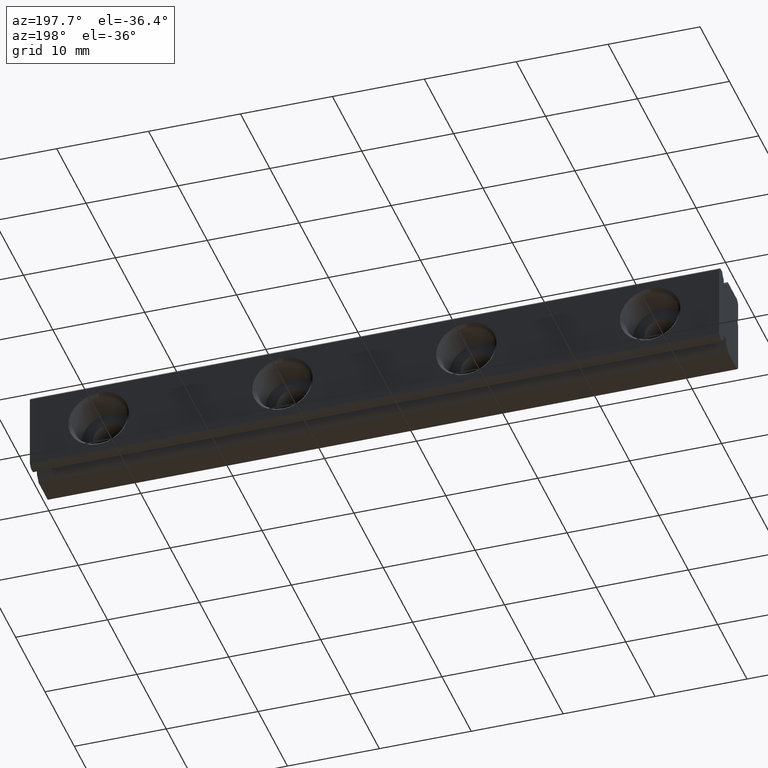
[diagram: clean part render]
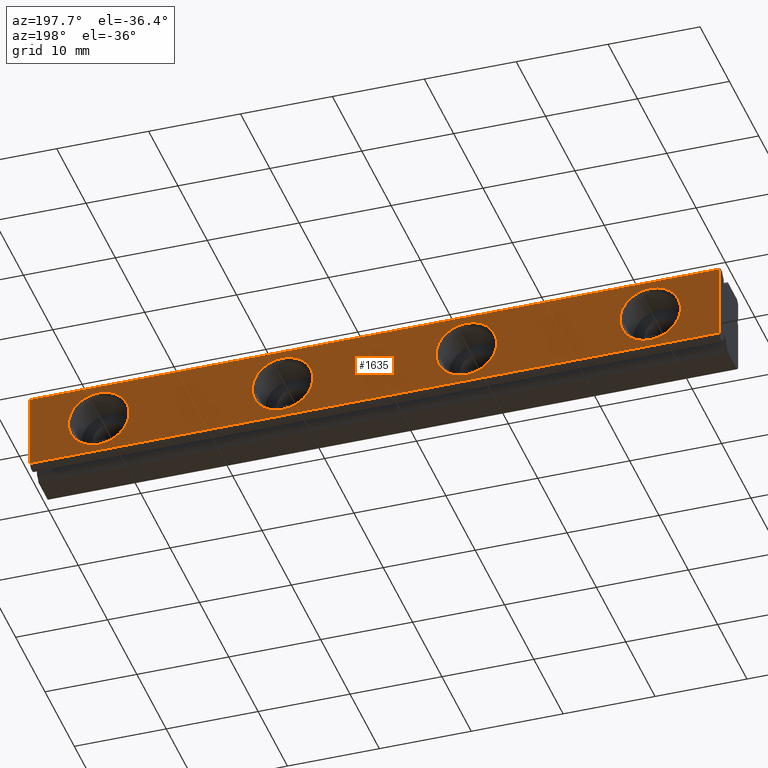
[diagram: same view with one face highlighted and labeled with its STEP entity id]
A machine part, auxiliary view. The second image highlights one B-rep face of the part: STEP entity #1635.
In plain terms, the highlighted planar face has unit normal (0, 1, 0).
Its self-contained STEP definition (entity closure, byte-faithful):
#41 = VERTEX_POINT ( 'NONE', #209 ) ;
#43 = EDGE_CURVE ( 'NONE', #47, #41, #202, .T. ) ;
#47 = VERTEX_POINT ( 'NONE', #193 ) ;
#50 = VERTEX_POINT ( 'NONE', #192 ) ;
#52 = EDGE_CURVE ( 'NONE', #127, #50, #254, .T. ) ;
#64 = EDGE_CURVE ( 'NONE', #77, #73, #223, .T. ) ;
#73 = VERTEX_POINT ( 'NONE', #265 ) ;
#77 = VERTEX_POINT ( 'NONE', #260 ) ;
#127 = VERTEX_POINT ( 'NONE', #401 ) ;
#192 = CARTESIAN_POINT ( 'NONE',  ( -67.50000000000000000, 6.500000000000000900, 3.299999999999996300 ) ) ;
#193 = CARTESIAN_POINT ( 'NONE',  ( -47.50000000000000000, 6.499999999999999100, -3.299999999999998500 ) ) ;
#199 = DIRECTION ( 'NONE',  ( 0.0000000000000000000, 2.628368902995164500E-016, 1.000000000000000000 ) ) ;
#200 = DIRECTION ( 'NONE',  ( 0.0000000000000000000, 1.000000000000000000, -2.668805347656626200E-016 ) ) ;
#201 = AXIS2_PLACEMENT_3D ( 'NONE', #208, #200, #199 ) ;
#202 = CIRCLE ( 'NONE', #201, 3.299999999999997200 ) ;
#208 = CARTESIAN_POINT ( 'NONE',  ( -47.50000000000000000, 6.500000000000000000, -1.372970165742619300E-015 ) ) ;
#209 = CARTESIAN_POINT ( 'NONE',  ( -47.50000000000000000, 6.500000000000000900, 3.299999999999996300 ) ) ;
#223 = CIRCLE ( 'NONE', #280, 3.300000000000000700 ) ;
#250 = DIRECTION ( 'NONE',  ( 0.0000000000000000000, 2.628368902995164500E-016, 1.000000000000000000 ) ) ;
#251 = DIRECTION ( 'NONE',  ( 0.0000000000000000000, 1.000000000000000000, -2.668805347656626200E-016 ) ) ;
#252 = CARTESIAN_POINT ( 'NONE',  ( -67.50000000000000000, 6.500000000000000000, -1.372970165742619300E-015 ) ) ;
#253 = AXIS2_PLACEMENT_3D ( 'NONE', #252, #251, #250 ) ;
#254 = CIRCLE ( 'NONE', #253, 3.299999999999997200 ) ;
#260 = CARTESIAN_POINT ( 'NONE',  ( -27.50000000000000000, 6.499999999999999100, -3.300000000000002000 ) ) ;
#265 = CARTESIAN_POINT ( 'NONE',  ( -27.50000000000000000, 6.500000000000000900, 3.299999999999999400 ) ) ;
#277 = DIRECTION ( 'NONE',  ( 0.0000000000000000000, 2.628368902995161500E-016, 1.000000000000000000 ) ) ;
#278 = DIRECTION ( 'NONE',  ( 0.0000000000000000000, 1.000000000000000000, -2.668805347656626200E-016 ) ) ;
#279 = CARTESIAN_POINT ( 'NONE',  ( -27.50000000000000000, 6.500000000000000000, -1.372970165742619300E-015 ) ) ;
#280 = AXIS2_PLACEMENT_3D ( 'NONE', #279, #278, #277 ) ;
#401 = CARTESIAN_POINT ( 'NONE',  ( -67.50000000000000000, 6.499999999999999100, -3.299999999999998500 ) ) ;
#508 = CARTESIAN_POINT ( 'NONE',  ( -7.500000000000000000, 6.500000000000000000, -1.372970165742619300E-015 ) ) ;
#515 = CARTESIAN_POINT ( 'NONE',  ( -7.500000000000000000, 6.500000000000000900, 3.299999999999998500 ) ) ;
#559 = CARTESIAN_POINT ( 'NONE',  ( -7.500000000000000000, 6.499999999999999100, -3.300000000000001200 ) ) ;
#564 = DIRECTION ( 'NONE',  ( 0.0000000000000000000, 2.628368902995162500E-016, 1.000000000000000000 ) ) ;
#565 = DIRECTION ( 'NONE',  ( 0.0000000000000000000, 1.000000000000000000, -2.668805347656626200E-016 ) ) ;
#566 = AXIS2_PLACEMENT_3D ( 'NONE', #508, #565, #564 ) ;
#567 = CIRCLE ( 'NONE', #566, 3.299999999999999800 ) ;
#812 = AXIS2_PLACEMENT_3D ( 'NONE', #879, #878, #877 ) ;
#813 = PLANE ( 'NONE',  #812 ) ;
#814 = FACE_OUTER_BOUND ( 'NONE', #1671, .T. ) ;
#815 = FACE_BOUND ( 'NONE', #1667, .T. ) ;
#816 = FACE_BOUND ( 'NONE', #1668, .T. ) ;
#817 = FACE_BOUND ( 'NONE', #1676, .T. ) ;
#818 = FACE_BOUND ( 'NONE', #1637, .T. ) ;
#853 = CARTESIAN_POINT ( 'NONE',  ( -75.00000000000000000, 6.499999999999998200, 4.100000000000001400 ) ) ;
#867 = DIRECTION ( 'NONE',  ( 0.0000000000000000000, 2.628368902995164500E-016, 1.000000000000000000 ) ) ;
#868 = DIRECTION ( 'NONE',  ( 0.0000000000000000000, 1.000000000000000000, -2.668805347656626200E-016 ) ) ;
#869 = CARTESIAN_POINT ( 'NONE',  ( -67.50000000000000000, 6.500000000000000000, -1.372970165742619300E-015 ) ) ;
#870 = AXIS2_PLACEMENT_3D ( 'NONE', #869, #868, #867 ) ;
#871 = CIRCLE ( 'NONE', #870, 3.299999999999997200 ) ;
#872 = DIRECTION ( 'NONE',  ( 1.000000000000000000, 0.0000000000000000000, 0.0000000000000000000 ) ) ;
#873 = VECTOR ( 'NONE', #872, 1000.000000000000000 ) ;
#874 = CARTESIAN_POINT ( 'NONE',  ( -75.00000000000000000, 6.499999999999998200, 4.100000000000001400 ) ) ;
#875 = LINE ( 'NONE', #874, #873 ) ;
#876 = CARTESIAN_POINT ( 'NONE',  ( 0.0000000000000000000, 6.499999999999998200, 4.100000000000001400 ) ) ;
#877 = DIRECTION ( 'NONE',  ( 0.0000000000000000000, -4.231032868236114900E-016, 1.000000000000000000 ) ) ;
#878 = DIRECTION ( 'NONE',  ( 0.0000000000000000000, 1.000000000000000000, 4.231032868236114900E-016 ) ) ;
#879 = CARTESIAN_POINT ( 'NONE',  ( -75.00000000000000000, 6.500000000000000000, 1.591988259969090200E-015 ) ) ;
#884 = CARTESIAN_POINT ( 'NONE',  ( -7.500000000000000000, 6.500000000000000000, -1.372970165742619300E-015 ) ) ;
#887 = DIRECTION ( 'NONE',  ( 0.0000000000000000000, -4.231032868236115400E-016, 1.000000000000000000 ) ) ;
#888 = VECTOR ( 'NONE', #887, 1000.000000000000000 ) ;
#889 = CARTESIAN_POINT ( 'NONE',  ( -75.00000000000000000, 6.500000000000000000, 1.591988259969090200E-015 ) ) ;
#890 = LINE ( 'NONE', #889, #888 ) ;
#891 = CARTESIAN_POINT ( 'NONE',  ( -75.00000000000000000, 6.500000000000000000, -4.099999999999997900 ) ) ;
#892 = DIRECTION ( 'NONE',  ( 0.0000000000000000000, 2.628368902995164500E-016, 1.000000000000000000 ) ) ;
#893 = DIRECTION ( 'NONE',  ( 0.0000000000000000000, 1.000000000000000000, -2.668805347656626200E-016 ) ) ;
#894 = CARTESIAN_POINT ( 'NONE',  ( -47.50000000000000000, 6.500000000000000000, -1.372970165742619300E-015 ) ) ;
#895 = AXIS2_PLACEMENT_3D ( 'NONE', #894, #893, #892 ) ;
#896 = CIRCLE ( 'NONE', #895, 3.299999999999997200 ) ;
#897 = DIRECTION ( 'NONE',  ( 0.0000000000000000000, 2.628368902995161500E-016, 1.000000000000000000 ) ) ;
#898 = DIRECTION ( 'NONE',  ( 0.0000000000000000000, 1.000000000000000000, -2.668805347656626200E-016 ) ) ;
#899 = CARTESIAN_POINT ( 'NONE',  ( -27.50000000000000000, 6.500000000000000000, -1.372970165742619300E-015 ) ) ;
#900 = AXIS2_PLACEMENT_3D ( 'NONE', #899, #898, #897 ) ;
#901 = CIRCLE ( 'NONE', #900, 3.300000000000000700 ) ;
#902 = DIRECTION ( 'NONE',  ( 1.000000000000000000, 0.0000000000000000000, 0.0000000000000000000 ) ) ;
#903 = VECTOR ( 'NONE', #902, 1000.000000000000000 ) ;
#904 = CARTESIAN_POINT ( 'NONE',  ( -75.00000000000000000, 6.500000000000000000, -4.099999999999997900 ) ) ;
#905 = LINE ( 'NONE', #904, #903 ) ;
#906 = CARTESIAN_POINT ( 'NONE',  ( 0.0000000000000000000, 6.500000000000000000, -4.099999999999997900 ) ) ;
#907 = DIRECTION ( 'NONE',  ( 0.0000000000000000000, -4.231032868236115400E-016, 1.000000000000000000 ) ) ;
#908 = VECTOR ( 'NONE', #907, 1000.000000000000000 ) ;
#909 = CARTESIAN_POINT ( 'NONE',  ( 0.0000000000000000000, 6.500000000000000000, 1.591988259969090200E-015 ) ) ;
#910 = LINE ( 'NONE', #909, #908 ) ;
#938 = DIRECTION ( 'NONE',  ( 0.0000000000000000000, 2.628368902995162500E-016, 1.000000000000000000 ) ) ;
#939 = DIRECTION ( 'NONE',  ( 0.0000000000000000000, 1.000000000000000000, -2.668805347656626200E-016 ) ) ;
#940 = AXIS2_PLACEMENT_3D ( 'NONE', #884, #939, #938 ) ;
#941 = CIRCLE ( 'NONE', #940, 3.299999999999999800 ) ;
#1474 = VERTEX_POINT ( 'NONE', #515 ) ;
#1477 = EDGE_CURVE ( 'NONE', #1482, #1474, #567, .T. ) ;
#1482 = VERTEX_POINT ( 'NONE', #559 ) ;
#1635 = ADVANCED_FACE ( 'NONE', ( #818, #817, #816, #815, #814 ), #813, .T. ) ;
#1636 = VERTEX_POINT ( 'NONE', #876 ) ;
#1637 = EDGE_LOOP ( 'NONE', ( #1640, #1674 ) ) ;
#1640 = ORIENTED_EDGE ( 'NONE', *, *, #1644, .F. ) ;
#1642 = EDGE_CURVE ( 'NONE', #1650, #1636, #875, .T. ) ;
#1644 = EDGE_CURVE ( 'NONE', #50, #127, #871, .T. ) ;
#1650 = VERTEX_POINT ( 'NONE', #853 ) ;
#1652 = EDGE_CURVE ( 'NONE', #1654, #1636, #910, .T. ) ;
#1653 = ORIENTED_EDGE ( 'NONE', *, *, #43, .F. ) ;
#1654 = VERTEX_POINT ( 'NONE', #906 ) ;
#1655 = ORIENTED_EDGE ( 'NONE', *, *, #1659, .F. ) ;
#1656 = ORIENTED_EDGE ( 'NONE', *, *, #1657, .F. ) ;
#1657 = EDGE_CURVE ( 'NONE', #1661, #1654, #905, .T. ) ;
#1658 = ORIENTED_EDGE ( 'NONE', *, *, #1663, .T. ) ;
#1659 = EDGE_CURVE ( 'NONE', #73, #77, #901, .T. ) ;
#1660 = EDGE_CURVE ( 'NONE', #41, #47, #896, .T. ) ;
#1661 = VERTEX_POINT ( 'NONE', #891 ) ;
#1662 = ORIENTED_EDGE ( 'NONE', *, *, #64, .F. ) ;
#1663 = EDGE_CURVE ( 'NONE', #1661, #1650, #890, .T. ) ;
#1664 = ORIENTED_EDGE ( 'NONE', *, *, #1642, .T. ) ;
#1666 = ORIENTED_EDGE ( 'NONE', *, *, #1477, .F. ) ;
#1667 = EDGE_LOOP ( 'NONE', ( #1670, #1666 ) ) ;
#1668 = EDGE_LOOP ( 'NONE', ( #1655, #1662 ) ) ;
#1670 = ORIENTED_EDGE ( 'NONE', *, *, #1675, .F. ) ;
#1671 = EDGE_LOOP ( 'NONE', ( #1682, #1656, #1658, #1664 ) ) ;
#1672 = ORIENTED_EDGE ( 'NONE', *, *, #1660, .F. ) ;
#1674 = ORIENTED_EDGE ( 'NONE', *, *, #52, .F. ) ;
#1675 = EDGE_CURVE ( 'NONE', #1474, #1482, #941, .T. ) ;
#1676 = EDGE_LOOP ( 'NONE', ( #1672, #1653 ) ) ;
#1682 = ORIENTED_EDGE ( 'NONE', *, *, #1652, .F. ) ;